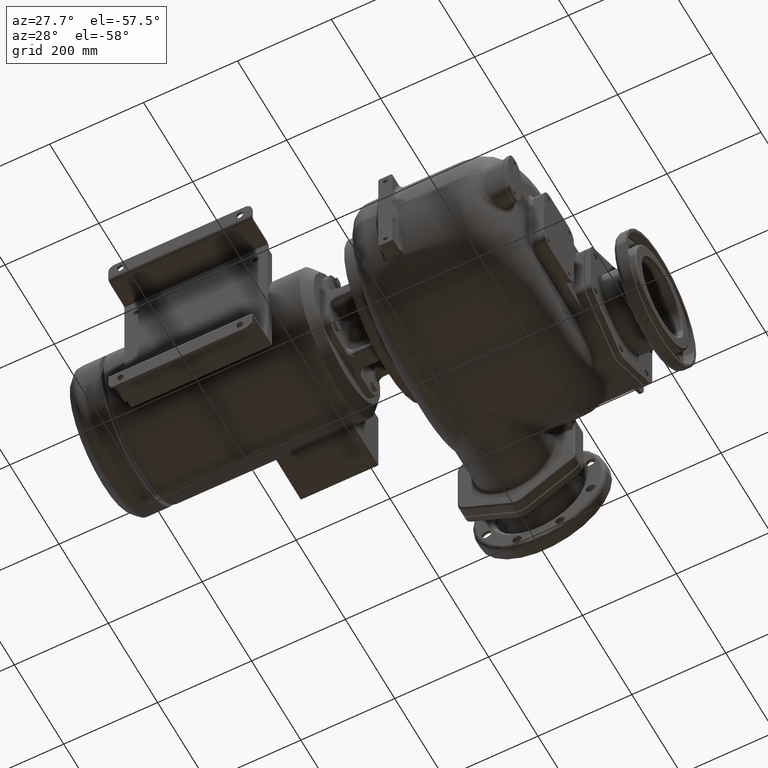
[diagram: clean part render]
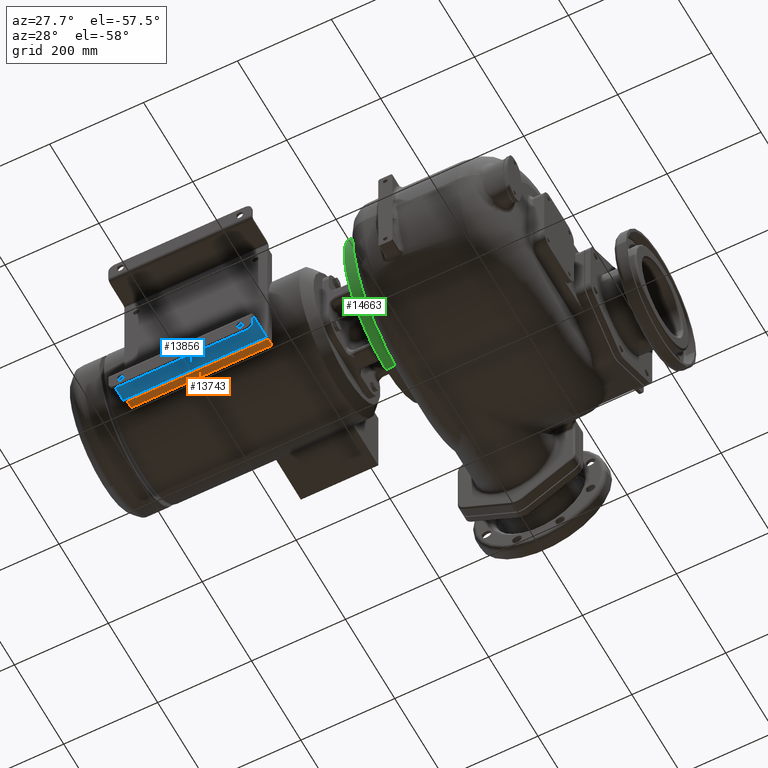
[diagram: same view with three faces highlighted in distinct colors, each labeled with its STEP entity id]
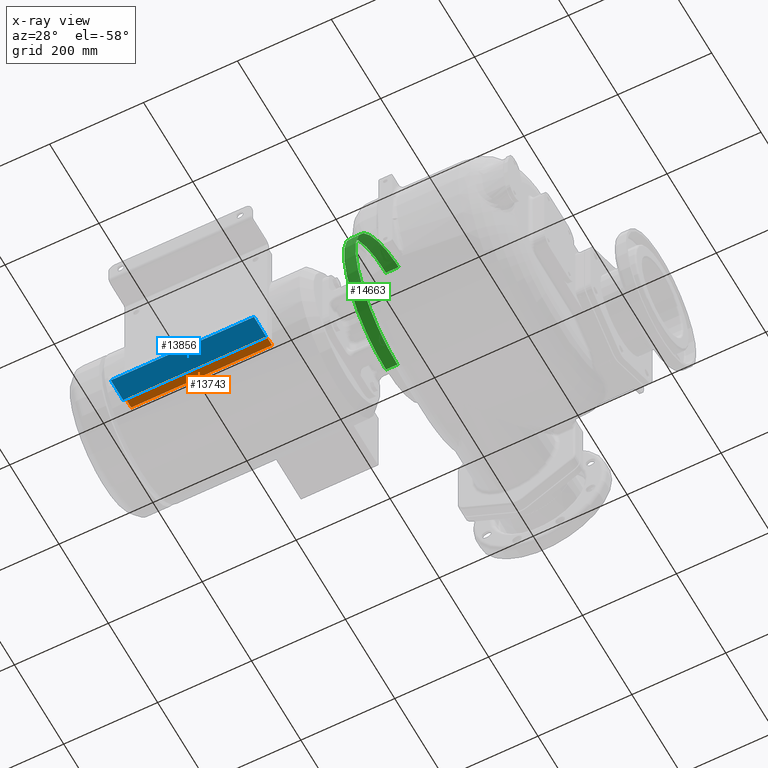
[diagram: x-ray of the same camera — body ghosted, the three highlighted faces saturated]
A machine part, auxiliary view with three faces highlighted in distinct colors.
The next image is the same camera in x-ray (body ghosted, the three faces saturated) — at least one of them is partly hidden behind the body in this view.
Their STEP definitions:

[orange] entity #13743 — the highlighted planar face has unit normal (0, 0, -1).
#253=DIRECTION('',(0.E0,1.E0,0.E0));
#254=VECTOR('',#253,1.8E1);
#255=CARTESIAN_POINT('',(-5.875E2,7.E1,-1.59E2));
#256=LINE('',#255,#254);
#697=DIRECTION('',(-1.E0,0.E0,0.E0));
#698=VECTOR('',#697,3.E2);
#699=CARTESIAN_POINT('',(-2.875E2,8.8E1,-1.59E2));
#700=LINE('',#699,#698);
#897=DIRECTION('',(-1.E0,0.E0,0.E0));
#898=VECTOR('',#897,3.E2);
#899=CARTESIAN_POINT('',(-2.875E2,7.E1,-1.59E2));
#900=LINE('',#899,#898);
#901=DIRECTION('',(0.E0,1.E0,0.E0));
#902=VECTOR('',#901,1.8E1);
#903=CARTESIAN_POINT('',(-2.875E2,7.E1,-1.59E2));
#904=LINE('',#903,#902);
#11952=CARTESIAN_POINT('',(-2.875E2,8.8E1,-1.59E2));
#11953=CARTESIAN_POINT('',(-5.875E2,8.8E1,-1.59E2));
#11954=VERTEX_POINT('',#11952);
#11955=VERTEX_POINT('',#11953);
#12228=CARTESIAN_POINT('',(-5.875E2,7.E1,-1.59E2));
#12230=VERTEX_POINT('',#12228);
#12241=CARTESIAN_POINT('',(-2.875E2,7.E1,-1.59E2));
#12243=VERTEX_POINT('',#12241);
#13732=CARTESIAN_POINT('',(-2.875E2,7.E1,-1.59E2));
#13733=DIRECTION('',(0.E0,0.E0,-1.E0));
#13734=DIRECTION('',(-1.E0,0.E0,0.E0));
#13735=AXIS2_PLACEMENT_3D('',#13732,#13733,#13734);
#13736=PLANE('',#13735);
#13737=ORIENTED_EDGE('',*,*,#12789,.F.);
#13738=ORIENTED_EDGE('',*,*,#13450,.T.);
#13739=ORIENTED_EDGE('',*,*,#13423,.T.);
#13740=ORIENTED_EDGE('',*,*,#12757,.F.);
#13741=EDGE_LOOP('',(#13737,#13738,#13739,#13740));
#13742=FACE_OUTER_BOUND('',#13741,.F.);
#13743=ADVANCED_FACE('',(#13742),#13736,.T.);
#12757=EDGE_CURVE('',#12230,#11955,#256,.T.);
#12789=EDGE_CURVE('',#12243,#12230,#900,.T.);
#13423=EDGE_CURVE('',#11954,#11955,#700,.T.);
#13450=EDGE_CURVE('',#12243,#11954,#904,.T.);

[blue] entity #13856 — the highlighted planar face has unit normal (0, 0, -1).
#339=DIRECTION('',(1.E0,0.E0,0.E0));
#340=VECTOR('',#339,3.05E2);
#341=CARTESIAN_POINT('',(-5.9E2,6.E1,-1.7E2));
#342=LINE('',#341,#340);
#945=DIRECTION('',(0.E0,1.E0,0.E0));
#946=VECTOR('',#945,5.E1);
#947=CARTESIAN_POINT('',(-5.9E2,1.E1,-1.7E2));
#948=LINE('',#947,#946);
#957=DIRECTION('',(1.E0,0.E0,0.E0));
#958=VECTOR('',#957,3.05E2);
#959=CARTESIAN_POINT('',(-5.9E2,1.E1,-1.7E2));
#960=LINE('',#959,#958);
#1165=DIRECTION('',(0.E0,1.E0,0.E0));
#1166=VECTOR('',#1165,5.E1);
#1167=CARTESIAN_POINT('',(-2.85E2,1.E1,-1.7E2));
#1168=LINE('',#1167,#1166);
#12037=CARTESIAN_POINT('',(-5.9E2,1.E1,-1.7E2));
#12039=VERTEX_POINT('',#12037);
#12040=CARTESIAN_POINT('',(-5.9E2,6.E1,-1.7E2));
#12041=VERTEX_POINT('',#12040);
#12053=CARTESIAN_POINT('',(-2.85E2,1.E1,-1.7E2));
#12055=VERTEX_POINT('',#12053);
#12056=CARTESIAN_POINT('',(-2.85E2,6.E1,-1.7E2));
#12057=VERTEX_POINT('',#12056);
#13843=CARTESIAN_POINT('',(-5.9E2,1.E1,-1.7E2));
#13844=DIRECTION('',(0.E0,0.E0,-1.E0));
#13845=DIRECTION('',(0.E0,1.E0,0.E0));
#13846=AXIS2_PLACEMENT_3D('',#13843,#13844,#13845);
#13847=PLANE('',#13846);
#13848=ORIENTED_EDGE('',*,*,#13834,.F.);
#13850=ORIENTED_EDGE('',*,*,#13849,.T.);
#13852=ORIENTED_EDGE('',*,*,#13851,.T.);
#13853=ORIENTED_EDGE('',*,*,#12899,.F.);
#13854=EDGE_LOOP('',(#13848,#13850,#13852,#13853));
#13855=FACE_OUTER_BOUND('',#13854,.F.);
#13856=ADVANCED_FACE('',(#13855),#13847,.T.);
#12899=EDGE_CURVE('',#12041,#12057,#342,.T.);
#13834=EDGE_CURVE('',#12039,#12041,#948,.T.);
#13849=EDGE_CURVE('',#12039,#12055,#960,.T.);
#13851=EDGE_CURVE('',#12055,#12057,#1168,.T.);

[green] entity #14663 — the highlighted cylindrical surface (partial cylindrical patch) has radius 170 mm, axis along (1, 0, 0).
#1709=DIRECTION('',(-1.E0,3.243865035649E-13,4.693813288215E-8));
#1710=VECTOR('',#1709,2.707359312881E1);
#1711=CARTESIAN_POINT('',(-9.242640687119E1,2.3E2,1.699999987292E2));
#1712=LINE('',#1711,#1710);
#1718=DIRECTION('',(1.E0,2.412945127153E-13,0.E0));
#1719=VECTOR('',#1718,2.45E1);
#1720=CARTESIAN_POINT('',(-1.195E2,2.3E2,-1.7E2));
#1721=LINE('',#1720,#1719);
#1756=CARTESIAN_POINT('',(-1.195E2,2.3E2,0.E0));
#1757=DIRECTION('',(-1.E0,0.E0,0.E0));
#1758=DIRECTION('',(0.E0,0.E0,-1.E0));
#1759=AXIS2_PLACEMENT_3D('',#1756,#1757,#1758);
#1761=CARTESIAN_POINT('',(-9.259148569204E1,2.175842696923E2,1.695460099924E2));
#1762=CARTESIAN_POINT('',(-9.256977377622E1,2.184147063648E2,1.696068221017E2));
#1763=CARTESIAN_POINT('',(-9.253043317057E1,2.200747350435E2,1.697161171462E2));
#1764=CARTESIAN_POINT('',(-9.248413266142E1,2.225615944023E2,1.698432592994E2));
#1765=CARTESIAN_POINT('',(-9.245086917350E1,2.250450641033E2,1.699338197949E2));
#1766=CARTESIAN_POINT('',(-9.243085486398E1,2.275248488230E2,1.699880021891E2));
#1767=CARTESIAN_POINT('',(-9.242640933798E1,2.291754517402E2,1.699999985548E2));
#1768=CARTESIAN_POINT('',(-9.242640687119E1,2.3E2,1.699999987292E2));
#1770=CARTESIAN_POINT('',(-9.500000000050E1,9.212570185064E1,9.945168071168E1));
#1771=CARTESIAN_POINT('',(-9.500000176179E1,9.269261650969E1,1.002376345190E2));
#1772=CARTESIAN_POINT('',(-9.499922959504E1,9.383972943401E1,1.017998796688E2));
#1773=CARTESIAN_POINT('',(-9.499597308201E1,9.560033223820E1,1.041131176215E2));
#1774=CARTESIAN_POINT('',(-9.499049368378E1,9.740007574038E1,1.063958543797E2));
#1775=CARTESIAN_POINT('',(-9.498281210318E1,9.923854581665E1,1.086474029510E2));
#1776=CARTESIAN_POINT('',(-9.497292593833E1,1.011152703239E2,1.108672323546E2));
#1777=CARTESIAN_POINT('',(-9.496084608191E1,1.030298097165E2,1.130548005978E2));
#1778=CARTESIAN_POINT('',(-9.494657946961E1,1.049817120785E2,1.152095732489E2));
#1779=CARTESIAN_POINT('',(-9.493013370115E1,1.069705181179E2,1.173310082136E2));
#1780=CARTESIAN_POINT('',(-9.491151800977E1,1.089955265307E2,1.194183264614E2));
#1781=CARTESIAN_POINT('',(-9.489074276203E1,1.110560240261E2,1.214707777682E2));
#1782=CARTESIAN_POINT('',(-9.486781764813E1,1.131512677522E2,1.234876224235E2));
#1783=CARTESIAN_POINT('',(-9.484276273974E1,1.152806939391E2,1.254683226612E2));
#1784=CARTESIAN_POINT('',(-9.481560057873E1,1.174437383248E2,1.274123517041E2));
#1785=CARTESIAN_POINT('',(-9.478635259261E1,1.196398387543E2,1.293191962146E2));
#1786=CARTESIAN_POINT('',(-9.475504147505E1,1.218683239213E2,1.311882634970E2));
#1787=CARTESIAN_POINT('',(-9.472169072270E1,1.241284898397E2,1.330189579380E2));
#1788=CARTESIAN_POINT('',(-9.468632229977E1,1.264196306171E2,1.348107078940E2));
#1789=CARTESIAN_POINT('',(-9.464896382380E1,1.287411771557E2,1.365630661758E2));
#1790=CARTESIAN_POINT('',(-9.460964861161E1,1.310925699154E2,1.382755985019E2));
#1791=CARTESIAN_POINT('',(-9.456840918957E1,1.334731878141E2,1.399478328712E2));
#1792=CARTESIAN_POINT('',(-9.452528174165E1,1.358822116702E2,1.415791773012E2));
#1793=CARTESIAN_POINT('',(-9.448030289515E1,1.383188104127E2,1.431690643960E2));
#1794=CARTESIAN_POINT('',(-9.443350629953E1,1.407822917755E2,1.447170419587E2));
#1795=CARTESIAN_POINT('',(-9.438493352672E1,1.432720249187E2,1.462227082279E2));
#1796=CARTESIAN_POINT('',(-9.433462728819E1,1.457873340660E2,1.476856435060E2));
#1797=CARTESIAN_POINT('',(-9.428263237689E1,1.483274209347E2,1.491053734119E2));
#1798=CARTESIAN_POINT('',(-9.422899379158E1,1.508914853830E2,1.504814459349E2));
#1799=CARTESIAN_POINT('',(-9.417375460358E1,1.534787911694E2,1.518134626233E2));
#1800=CARTESIAN_POINT('',(-9.411696508699E1,1.560886116477E2,1.531010441283E2));
#1801=CARTESIAN_POINT('',(-9.405867711164E1,1.587201667293E2,1.543437997069E2));
#1802=CARTESIAN_POINT('',(-9.399894349053E1,1.613726292401E2,1.555413358083E2));
#1803=CARTESIAN_POINT('',(-9.393781481553E1,1.640452399969E2,1.566933086323E2));
#1804=CARTESIAN_POINT('',(-9.387534283451E1,1.667373035612E2,1.577994134272E2));
#1805=CARTESIAN_POINT('',(-9.381158567658E1,1.694480353830E2,1.588593195798E2));
#1806=CARTESIAN_POINT('',(-9.374660239634E1,1.721765750037E2,1.598726850650E2));
#1807=CARTESIAN_POINT('',(-9.368045159558E1,1.749220729779E2,1.608391923803E2));
#1808=CARTESIAN_POINT('',(-9.361319375593E1,1.776836583021E2,1.617585364344E2));
#1809=CARTESIAN_POINT('',(-9.354489193719E1,1.804605277106E2,1.626304532931E2));
#1810=CARTESIAN_POINT('',(-9.347560790191E1,1.832519025942E2,1.634547002826E2));
#1811=CARTESIAN_POINT('',(-9.340540319031E1,1.860569953515E2,1.642310447705E2));
#1812=CARTESIAN_POINT('',(-9.333434145765E1,1.888750121827E2,1.649592652501E2));
#1813=CARTESIAN_POINT('',(-9.326248974403E1,1.917051237384E2,1.656391449710E2));
#1814=CARTESIAN_POINT('',(-9.318991448107E1,1.945465006313E2,1.662704825066E2));
#1815=CARTESIAN_POINT('',(-9.311668217603E1,1.973983084854E2,1.668530903812E2));
#1816=CARTESIAN_POINT('',(-9.304286177833E1,2.002597283263E2,1.673867988437E2));
#1817=CARTESIAN_POINT('',(-9.296852236193E1,2.031299398992E2,1.678714514806E2));
#1818=CARTESIAN_POINT('',(-9.289373270504E1,2.060081204263E2,1.683069049430E2));
#1819=CARTESIAN_POINT('',(-9.281856388700E1,2.088934304595E2,1.686930272878E2));
#1820=CARTESIAN_POINT('',(-9.274308751552E1,2.117850273333E2,1.690297005628E2));
#1821=CARTESIAN_POINT('',(-9.266737487687E1,2.146820708535E2,1.693168221830E2));
#1822=CARTESIAN_POINT('',(-9.261679202135E1,2.166164580140E2,1.694751373503E2));
#1823=CARTESIAN_POINT('',(-9.259148569204E1,2.175842696923E2,1.695460099924E2));
#1825=CARTESIAN_POINT('',(-9.5E1,2.3E2,0.E0));
#1826=DIRECTION('',(-1.E0,0.E0,0.E0));
#1827=DIRECTION('',(0.E0,0.E0,-1.E0));
#1828=AXIS2_PLACEMENT_3D('',#1825,#1826,#1827);
#11034=CARTESIAN_POINT('',(-9.5E1,2.3E2,-1.7E2));
#11035=CARTESIAN_POINT('',(-9.5E1,9.212560377855E1,9.945175145049E1));
#11036=VERTEX_POINT('',#11034);
#11037=VERTEX_POINT('',#11035);
#11040=VERTEX_POINT('',#1823);
#11042=VERTEX_POINT('',#1768);
#11243=CARTESIAN_POINT('',(-1.195E2,2.3E2,-1.7E2));
#11244=CARTESIAN_POINT('',(-1.195E2,2.3E2,1.7E2));
#11245=VERTEX_POINT('',#11243);
#11246=VERTEX_POINT('',#11244);
#14647=CARTESIAN_POINT('',(-1.05E2,2.3E2,0.E0));
#14648=DIRECTION('',(1.E0,0.E0,0.E0));
#14649=DIRECTION('',(0.E0,0.E0,-1.E0));
#14650=AXIS2_PLACEMENT_3D('',#14647,#14648,#14649);
#14651=CYLINDRICAL_SURFACE('',#14650,1.7E2);
#14652=ORIENTED_EDGE('',*,*,#14638,.F.);
#14653=ORIENTED_EDGE('',*,*,#14592,.T.);
#14654=ORIENTED_EDGE('',*,*,#14635,.F.);
#14656=ORIENTED_EDGE('',*,*,#14655,.F.);
#14658=ORIENTED_EDGE('',*,*,#14657,.F.);
#14660=ORIENTED_EDGE('',*,*,#14659,.F.);
#14661=EDGE_LOOP('',(#14652,#14653,#14654,#14656,#14658,#14660));
#14662=FACE_OUTER_BOUND('',#14661,.F.);
#14663=ADVANCED_FACE('',(#14662),#14651,.T.);
#1760=CIRCLE('',#1759,1.7E2);
#1769=B_SPLINE_CURVE_WITH_KNOTS('',3,(#1761,#1762,#1763,#1764,#1765,#1766,#1767,
#1768),.UNSPECIFIED.,.F.,.F.,(4,1,1,1,1,4),(0.E0,2.E-1,4.E-1,6.E-1,8.E-1,1.E0),
.UNSPECIFIED.);
#1824=B_SPLINE_CURVE_WITH_KNOTS('',3,(#1770,#1771,#1772,#1773,#1774,#1775,#1776,
#1777,#1778,#1779,#1780,#1781,#1782,#1783,#1784,#1785,#1786,#1787,#1788,#1789,
#1790,#1791,#1792,#1793,#1794,#1795,#1796,#1797,#1798,#1799,#1800,#1801,#1802,
#1803,#1804,#1805,#1806,#1807,#1808,#1809,#1810,#1811,#1812,#1813,#1814,#1815,
#1816,#1817,#1818,#1819,#1820,#1821,#1822,#1823),.UNSPECIFIED.,.F.,.F.,(4,1,1,1,
1,1,1,1,1,1,1,1,1,1,1,1,1,1,1,1,1,1,1,1,1,1,1,1,1,1,1,1,1,1,1,1,1,1,1,1,1,1,1,1,
1,1,1,1,1,1,1,4),(0.E0,1.960784313725E-2,3.921568627451E-2,5.882352941176E-2,
7.843137254902E-2,9.803921568627E-2,1.176470588235E-1,1.372549019608E-1,
1.568627450980E-1,1.764705882353E-1,1.960784313725E-1,2.156862745098E-1,
2.352941176471E-1,2.549019607843E-1,2.745098039216E-1,2.941176470588E-1,
3.137254901961E-1,3.333333333333E-1,3.529411764706E-1,3.725490196078E-1,
3.921568627451E-1,4.117647058824E-1,4.313725490196E-1,4.509803921569E-1,
4.705882352941E-1,4.901960784314E-1,5.098039215686E-1,5.294117647059E-1,
5.490196078431E-1,5.686274509804E-1,5.882352941176E-1,6.078431372549E-1,
6.274509803922E-1,6.470588235294E-1,6.666666666667E-1,6.862745098039E-1,
7.058823529412E-1,7.254901960784E-1,7.450980392157E-1,7.647058823529E-1,
7.843137254902E-1,8.039215686275E-1,8.235294117647E-1,8.431372549020E-1,
8.627450980392E-1,8.823529411765E-1,9.019607843137E-1,9.215686274510E-1,
9.411764705882E-1,9.607843137255E-1,9.803921568627E-1,1.E0),.UNSPECIFIED.);
#1829=CIRCLE('',#1828,1.7E2);
#14592=EDGE_CURVE('',#11245,#11246,#1760,.T.);
#14635=EDGE_CURVE('',#11042,#11246,#1712,.T.);
#14638=EDGE_CURVE('',#11245,#11036,#1721,.T.);
#14655=EDGE_CURVE('',#11040,#11042,#1769,.T.);
#14657=EDGE_CURVE('',#11037,#11040,#1824,.T.);
#14659=EDGE_CURVE('',#11036,#11037,#1829,.T.);